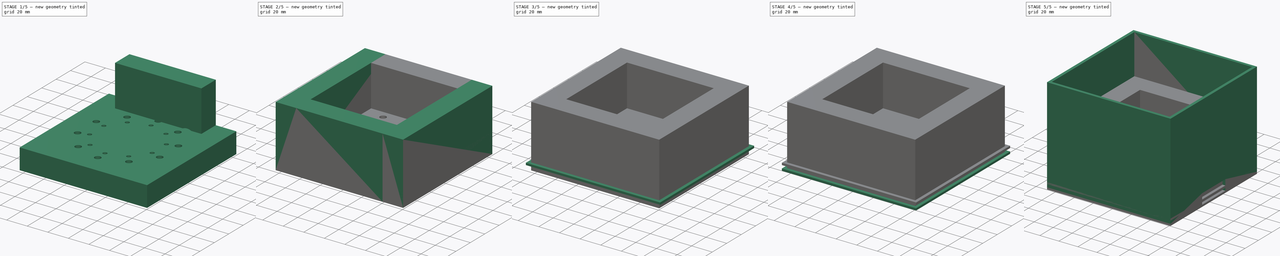
[diagram: build sequence overview — one tinted view per stage of 5, left to right]
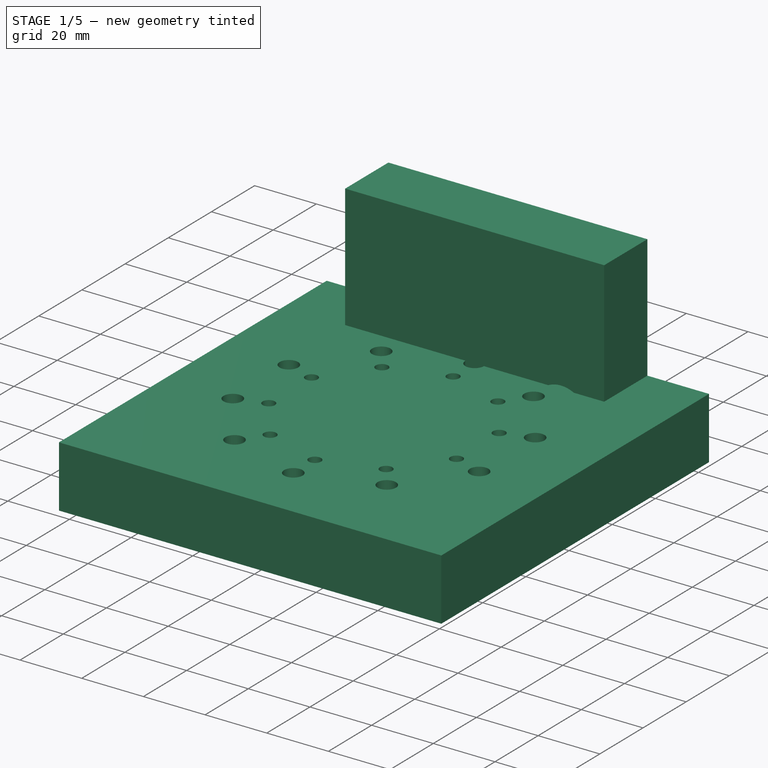
[diagram: stage 1 of 5 — iso view after this stage's code; geometry added in this stage tinted green]
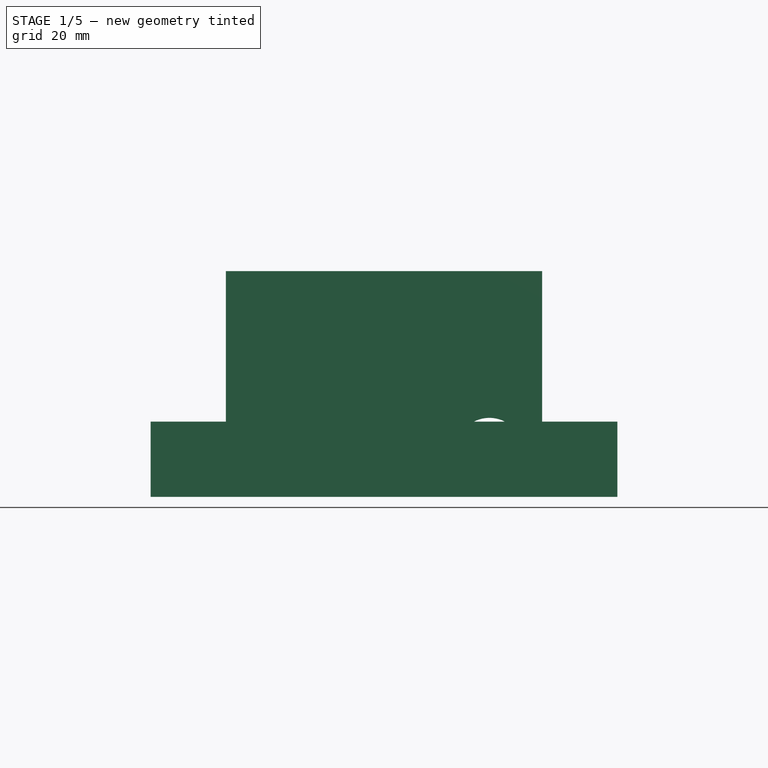
[diagram: stage 1 of 5 — front view after this stage's code; geometry added in this stage tinted green]
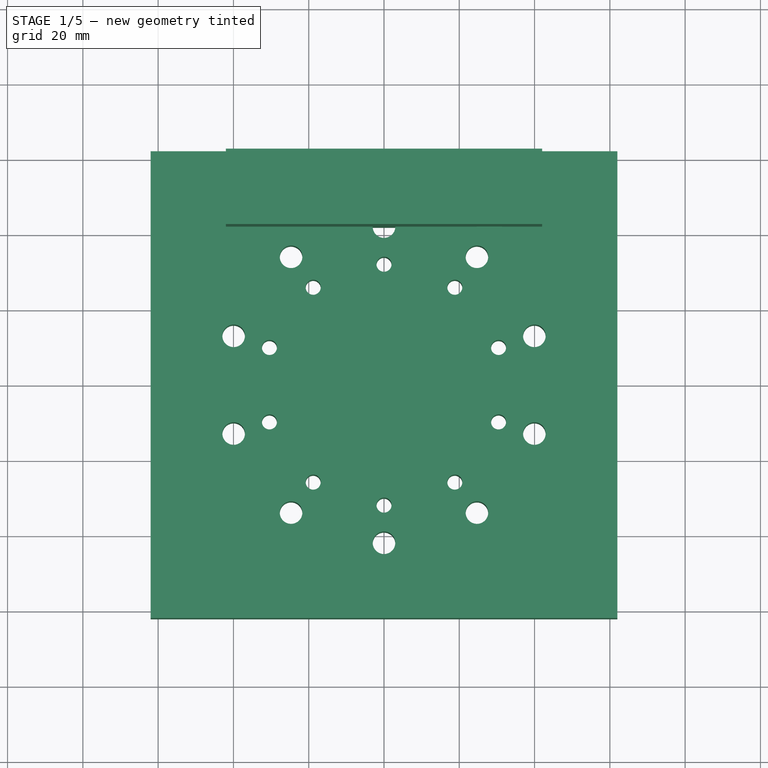
[diagram: stage 1 of 5 — top view after this stage's code; geometry added in this stage tinted green]
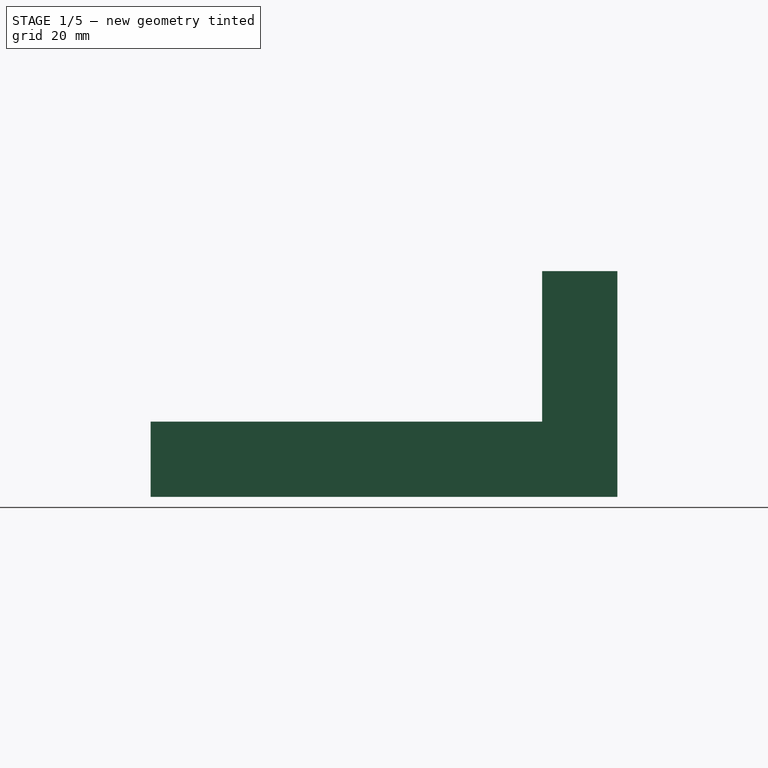
[diagram: stage 1 of 5 — right view after this stage's code; geometry added in this stage tinted green]
FCSTD DOCUMENT  (FreeCAD 2022.111R30764 (Git))
Label: CPAP_quiet_case
License: All rights reserved
LicenseURL: http://en.wikipedia.org/wiki/All_rights_reserved
objects: Sketcher::SketchObject×16, Part::SubShapeBinder×11, PartDesign::Pad×10, PartDesign::Body×8, PartDesign::Pocket×4, PartDesign::PolarPattern×1, PartDesign::SubtractiveLoft×1
note: 83 computed .brp shape members not serialized (recipe doc carries the construction recipe); baked Part::Feature solids carry a one-line shape summary decoded from their .brp

FEATURE [PartDesign::Body] Body006  label="Foam padding 4"
  AutoGroupSolids = false
  ExportMode = 0
  Group = -> [Sketch012,Import005,Import006,Pad007]
  Origin = -> Origin006
  Placement = pos=(0,0,22) rot=(0,0,1;0rad)
  Tip = -> Pad007
  TreeRank = 93
  _ExportChildren = -> [Import005,Import006,Pad007]
  _GroupVersion = 1
FEATURE [Part::SubShapeBinder] Import007  label="Import007(Pad005)"
  BindCopyOnChange = 0
  BindMode = 0
  ClaimChildren = false
  Context = -> Body007 [Import007.]
  FillStyle = 0
  Fuse = false
  MakeFace = false
  PartialLoad = false
  Relative = true
  Support = -> [Body003[Pad005.]]
  TreeRank = 111
  _Version = 8
FEATURE [Part::SubShapeBinder] Import008  label="Import008(Pad006)"
  BindCopyOnChange = 0
  BindMode = 0
  ClaimChildren = false
  Context = -> Body007 [Import008.]
  FillStyle = 0
  Fuse = false
  MakeFace = false
  PartialLoad = false
  Relative = true
  Support = -> [Body005[Pad006.]]
  TreeRank = 112
  _Version = 8
FEATURE [Sketcher::SketchObject] Sketch013
  ExternalGeometry = -> [Import007,Import008]
  FullyConstrained = true
  TreeRank = 110
  sketch-geometry (4):
    g0: LineSegment StartX=-42 StartY=62 StartZ=0 EndX=42 EndY=62 EndZ=0
    g1: LineSegment StartX=42 StartY=62 StartZ=0 EndX=42 EndY=42 EndZ=0
    g2: LineSegment StartX=42 StartY=42 StartZ=0 EndX=-42 EndY=42 EndZ=0
    g3: LineSegment StartX=-42 StartY=42 StartZ=0 EndX=-42 EndY=62 EndZ=0
  constraints (11):
    c: Coincident(g0,g1)
    c: Coincident(g1,g2)
    c: Coincident(g2,g3)
    c: Coincident(g3,g0)
    c: Horizontal(g0)
    c: Horizontal(g2)
    c: Vertical(g1)
    c: Vertical(g3)
    c: Coincident(g0,g-3)
    c: PointOnObject(g1,g-4)
    c: DistanceY(g1,g1) = 20
FEATURE [PartDesign::Pad] Pad008
  AddSubType = 0
  AlongSketchNormal = false
  CheckUpToFaceLimits = true
  ClaimChildren = false
  Direction = (0,0,1)
  Fit = 0
  FitJoin = 0
  InnerFit = 0
  InnerFitJoin = 0
  InnerTaperAngle = 0
  InnerTaperAngleRev = 0
  Length = 60
  Length2 = 100
  Linearize = true
  NewSolid = false
  Profile = -> Sketch013
  Suppress = false
  TreeRank = 113
  Type = 0
  _ProfileBasedVersion = 1
FEATURE [Part::SubShapeBinder] Import009  label="Import009(PolarPattern)"
  BindCopyOnChange = 0
  BindMode = 0
  ClaimChildren = false
  Context = -> Body008 [Import009.]
  FillStyle = 0
  Fuse = false
  MakeFace = false
  PartialLoad = false
  Relative = true
  Support = -> [Body001[PolarPattern.]]
  TreeRank = 127
  _Version = 8
FEATURE [Sketcher::SketchObject] Sketch014
  ExternalGeometry = -> [Import009]
  FullyConstrained = true
  TreeRank = 126
  sketch-geometry (24):
    g0: LineSegment StartX=-62 StartY=62 StartZ=0 EndX=62 EndY=62 EndZ=0
    g1: LineSegment StartX=62 StartY=62 StartZ=0 EndX=62 EndY=-62 EndZ=0
    g2: LineSegment StartX=62 StartY=-62 StartZ=0 EndX=-62 EndY=-62 EndZ=0
    g3: LineSegment StartX=-62 StartY=-62 StartZ=0 EndX=-62 EndY=62 EndZ=0
    g4: Circle CenterX=-24.687 CenterY=33.9787 CenterZ=0 NormalX=0 NormalY=0 NormalZ=1 AngleXU=0 Radius=3
    g5: Circle CenterX=-39.9444 CenterY=12.9787 CenterZ=0 NormalX=0 NormalY=0 NormalZ=1 AngleXU=0 Radius=3
    g6: Circle CenterX=-30.4338 CenterY=9.88854 CenterZ=0 NormalX=0 NormalY=0 NormalZ=1 AngleXU=0 Radius=2
    g7: Circle CenterX=-30.4338 CenterY=-9.88854 CenterZ=0 NormalX=0 NormalY=0 NormalZ=1 AngleXU=0 Radius=2
    g8: Circle CenterX=-39.9444 CenterY=-12.9787 CenterZ=0 NormalX=0 NormalY=0 NormalZ=1 AngleXU=0 Radius=3
    g9: Circle CenterX=-18.8091 CenterY=-25.8885 CenterZ=0 NormalX=0 NormalY=0 NormalZ=1 AngleXU=0 Radius=2
    g10: Circle CenterX=-24.687 CenterY=-33.9787 CenterZ=0 NormalX=0 NormalY=0 NormalZ=1 AngleXU=0 Radius=3
    g11: Circle CenterX=0 CenterY=-32 CenterZ=0 NormalX=0 NormalY=0 NormalZ=1 AngleXU=0 Radius=2
    g12: Circle CenterX=0 CenterY=-42 CenterZ=0 NormalX=0 NormalY=0 NormalZ=1 AngleXU=0 Radius=3
    g13: Circle CenterX=24.687 CenterY=-33.9787 CenterZ=0 NormalX=0 NormalY=0 NormalZ=1 AngleXU=0 Radius=3
    g14: Circle CenterX=18.8091 CenterY=-25.8885 CenterZ=0 NormalX=0 NormalY=0 NormalZ=1 AngleXU=0 Radius=2
    g15: Circle CenterX=30.4338 CenterY=-9.88854 CenterZ=0 NormalX=0 NormalY=0 NormalZ=1 AngleXU=0 Radius=2
    g16: Circle CenterX=39.9444 CenterY=-12.9787 CenterZ=0 NormalX=0 NormalY=0 NormalZ=1 AngleXU=0 Radius=3
    g17: Circle CenterX=39.9444 CenterY=12.9787 CenterZ=0 NormalX=0 NormalY=0 NormalZ=1 AngleXU=0 Radius=3
    g18: Circle CenterX=24.687 CenterY=33.9787 CenterZ=0 NormalX=0 NormalY=0 NormalZ=1 AngleXU=0 Radius=3
    g19: Circle CenterX=18.8091 CenterY=25.8885 CenterZ=0 NormalX=0 NormalY=0 NormalZ=1 AngleXU=0 Radius=2
    g20: Circle CenterX=0 CenterY=32 CenterZ=0 NormalX=0 NormalY=0 NormalZ=1 AngleXU=0 Radius=2
    g21: Circle CenterX=0 CenterY=42 CenterZ=0 NormalX=0 NormalY=0 NormalZ=1 AngleXU=0 Radius=3
    g22: Circle CenterX=-18.8091 CenterY=25.8885 CenterZ=0 NormalX=0 NormalY=0 NormalZ=1 AngleXU=0 Radius=2
    g23: Circle CenterX=30.4338 CenterY=9.88854 CenterZ=0 NormalX=0 NormalY=0 NormalZ=1 AngleXU=0 Radius=2
  constraints (50):
    c: Coincident(g0,g1)
    c: Coincident(g1,g2)
    c: Coincident(g2,g3)
    c: Coincident(g3,g0)
    c: Horizontal(g0)
    c: Horizontal(g2)
    c: Vertical(g1)
    c: Vertical(g3)
    c: Coincident(g0,g-4)
    c: Coincident(g1,g-3)
    c: Coincident(g4,g-19)
    c: Equal(g-19,g4)
    c: Coincident(g5,g-18)
    c: Coincident(g6,g-16)
    c: Coincident(g7,g-15)
    c: Coincident(g8,g-17)
    c: Coincident(g9,g-12)
    c: Coincident(g10,g-11)
    c: Coincident(g11,g-14)
    c: Coincident(g12,g-10)
    c: Coincident(g13,g-8)
    c: Coincident(g14,g-7)
    c: Coincident(g15,g-6)
    c: Coincident(g16,g-5)
    c: Coincident(g17,g-25)
    c: Coincident(g18,g-23)
    c: Coincident(g19,g-24)
    c: Coincident(g20,g-27)
    c: Coincident(g21,g-22)
    c: Coincident(g22,g-20)
    c: Equal(g22,g-20)
    c: Equal(g20,g19)
    c: Equal(g19,g15)
    c: Equal(g15,g14)
    c: Equal(g14,g7)
    c: Equal(g7,g6)
    c: Equal(g6,g9)
    c: Equal(g9,g11)
    c: Equal(g20,g22)
    c: Coincident(g23,g-26)
    c: Equal(g23,g20)
    c: Equal(g5,g8)
    c: Equal(g8,g10)
    c: Equal(g10,g12)
    c: Equal(g12,g13)
    c: Equal(g13,g16)
    c: Equal(g16,g17)
    c: Equal(g17,g18)
    c: Equal(g18,g21)
    c: Equal(g21,g4)
FEATURE [PartDesign::Pad] Pad009
  AddSubType = 0
  AlongSketchNormal = false
  CheckUpToFaceLimits = true
  ClaimChildren = false
  Direction = (0,0,1)
  Fit = 0
  FitJoin = 0
  InnerFit = 0
  InnerFitJoin = 0
  InnerTaperAngle = 0
  InnerTaperAngleRev = 0
  Length = 20
  Length2 = 100
  Linearize = true
  NewSolid = false
  Profile = -> Sketch014
  Suppress = false
  TreeRank = 128
  Type = 0
  _ProfileBasedVersion = 1
FEATURE [PartDesign::Body] Body008  label="Foam padding 6"
  AutoGroupSolids = false
  ExportMode = 0
  Group = -> [Sketch014,Import009,Pad009]
  Origin = -> Origin008
  Placement = pos=(0,0,82) rot=(0,0,1;0rad)
  Tip = -> Pad009
  TreeRank = 125
  _ExportChildren = -> [Import009,Pad009]
  _GroupVersion = 1
FEATURE [Part::SubShapeBinder] Import010  label="Import010(Pocket001)"
  BindCopyOnChange = 0
  BindMode = 0
  ClaimChildren = false
  Context = -> Body007 [Import010.]
  FillStyle = 0
  Fuse = false
  MakeFace = false
  PartialLoad = false
  Relative = true
  Support = -> [Body[Pocket001.]]
  TreeRank = 130
  _Version = 8
FEATURE [Sketcher::SketchObject] Sketch015
  ExternalGeometry = -> [Import010]
  FullyConstrained = true
  MapMode = 5
  Placement = pos=(0,62,0) rot=(0,0.707107,0.707107;3.14159rad)
  Support = -> [Pad008]
  TreeRank = 129
  sketch-geometry (1):
    g0: Circle CenterX=-28 CenterY=12 CenterZ=0 NormalX=0 NormalY=0 NormalZ=1 AngleXU=0 Radius=9
  constraints (2):
    c: Coincident(g0,g-3)
    c: Equal(g0,g-3)
FEATURE [PartDesign::Pocket] Pocket003
  AddSubType = 1
  BaseFeature = -> Pad008
  CheckUpToFaceLimits = true
  ClaimChildren = false
  Fit = 0
  FitJoin = 0
  InnerFit = 0
  InnerFitJoin = 0
  InnerTaperAngle = 0
  InnerTaperAngleRev = 0
  Length = 20
  Length2 = 100
  Linearize = true
  NewSolid = false
  Profile = -> Sketch015
  Suppress = false
  TreeRank = 131
  Type = 0
  _ProfileBasedVersion = 1
  _Version = 1
FEATURE [PartDesign::Body] Body007  label="Foam padding 5"
  AutoGroupSolids = false
  ExportMode = 0
  Group = -> [Sketch013,Import007,Import008,Pad008,Sketch015,Import010,Pocket003]
  Origin = -> Origin007
  Placement = pos=(0,0,22) rot=(0,0,1;0rad)
  Tip = -> Pocket003
  TreeRank = 109
  _ExportChildren = -> [Import007,Import008,Pad008,Import010,Pocket003]
  _GroupVersion = 1
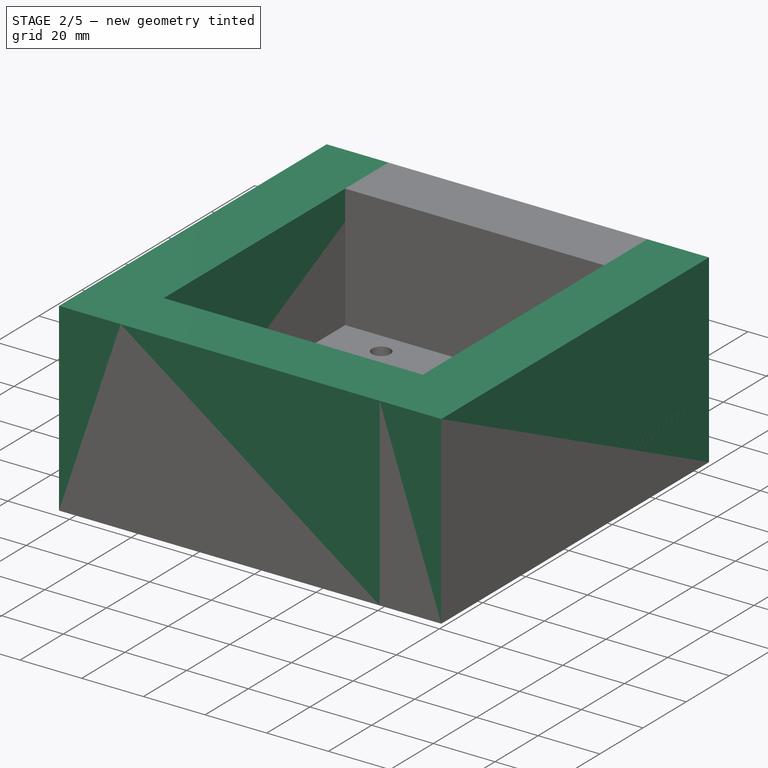
[diagram: stage 2 of 5 — iso view after this stage's code; geometry added in this stage tinted green]
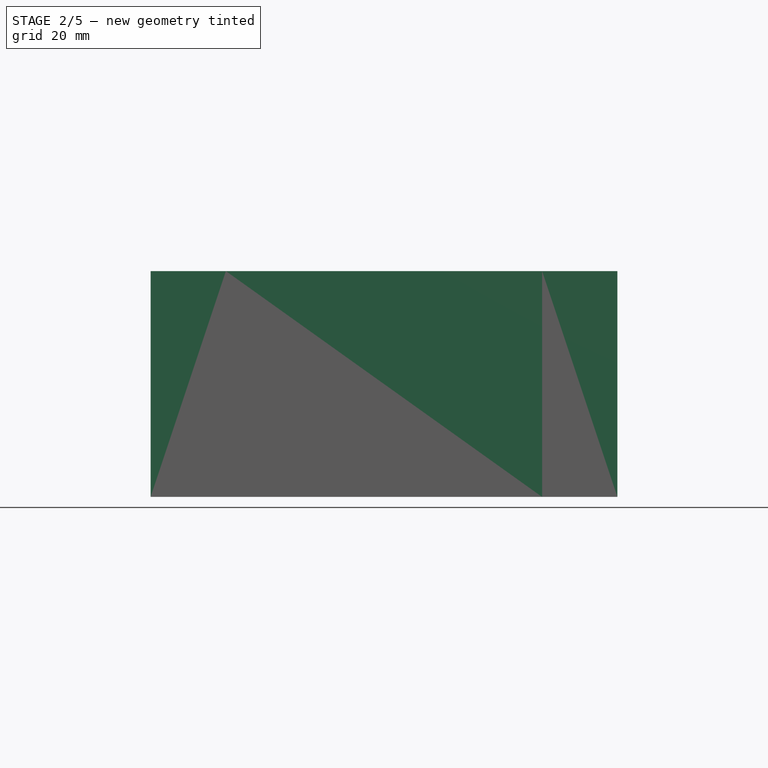
[diagram: stage 2 of 5 — front view after this stage's code; geometry added in this stage tinted green]
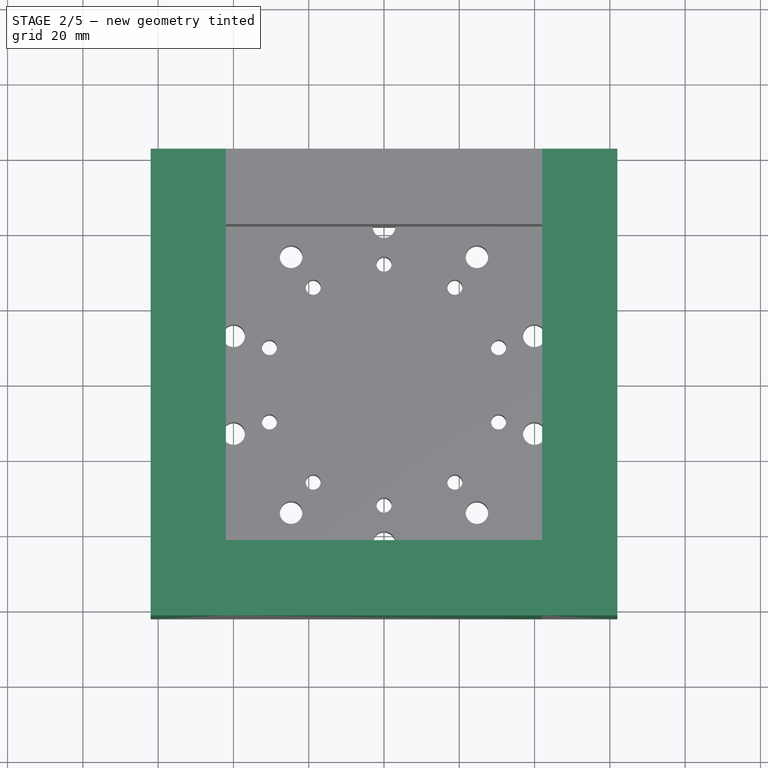
[diagram: stage 2 of 5 — top view after this stage's code; geometry added in this stage tinted green]
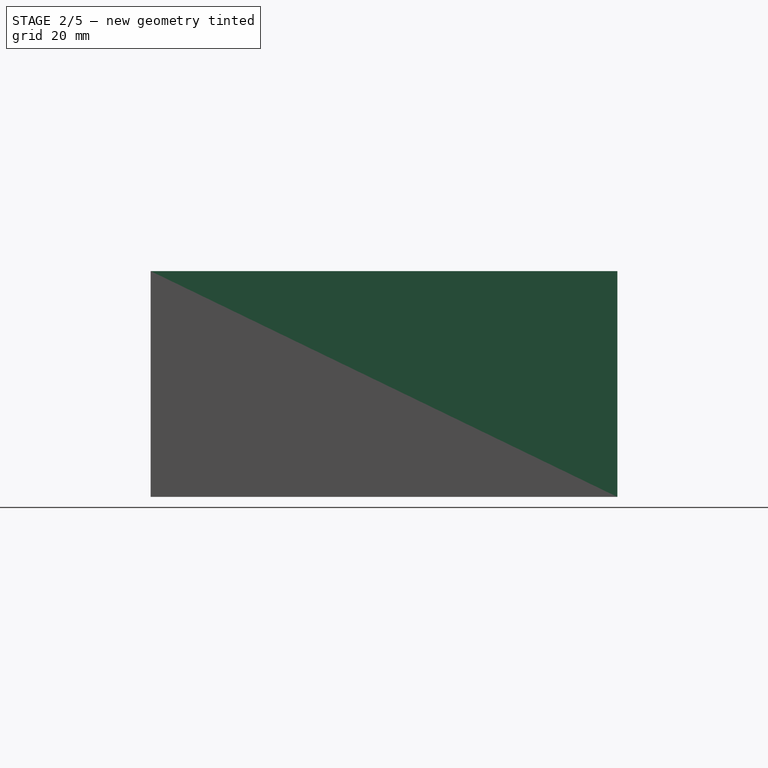
[diagram: stage 2 of 5 — right view after this stage's code; geometry added in this stage tinted green]
FEATURE [PartDesign::Body] Body002  label="Foam padding 1"
  AutoGroupSolids = false
  ExportMode = 0
  Group = -> [Sketch007,Import001,Pad004,Sketch008,Sketch009,Loft]
  Origin = -> Origin002
  Placement = pos=(0,0,2) rot=(0,0,1;0rad)
  Tip = -> Loft
  TreeRank = 52
  _ExportChildren = -> [Import001,Pad004,Loft]
  _GroupVersion = 1
FEATURE [Part::SubShapeBinder] Import002  label="Import002(Pocket001)"
  BindCopyOnChange = 0
  BindMode = 0
  ClaimChildren = false
  Context = -> Body003 [Import002.]
  FillStyle = 0
  Fuse = false
  MakeFace = false
  PartialLoad = false
  Relative = true
  Support = -> [Body[Pocket001.]]
  TreeRank = 72
  _Version = 8
FEATURE [Sketcher::SketchObject] Sketch010
  ExternalGeometry = -> [Import002]
  FullyConstrained = true
  TreeRank = 71
  sketch-geometry (4):
    g0: LineSegment StartX=-62 StartY=62 StartZ=0 EndX=-42 EndY=62 EndZ=0
    g1: LineSegment StartX=-42 StartY=62 StartZ=0 EndX=-42 EndY=-62 EndZ=0
    g2: LineSegment StartX=-42 StartY=-62 StartZ=0 EndX=-62 EndY=-62 EndZ=0
    g3: LineSegment StartX=-62 StartY=-62 StartZ=0 EndX=-62 EndY=62 EndZ=0
  constraints (11):
    c: Coincident(g0,g1)
    c: Coincident(g1,g2)
    c: Coincident(g2,g3)
    c: Coincident(g3,g0)
    c: Horizontal(g0)
    c: Horizontal(g2)
    c: Vertical(g1)
    c: Vertical(g3)
    c: Coincident(g0,g-3)
    c: PointOnObject(g1,g-4)
    c: DistanceX(g2,g2) = 20
FEATURE [PartDesign::Pad] Pad005
  AddSubType = 0
  AlongSketchNormal = false
  CheckUpToFaceLimits = true
  ClaimChildren = false
  Direction = (0,0,1)
  Fit = 0
  FitJoin = 0
  InnerFit = 0
  InnerFitJoin = 0
  InnerTaperAngle = 0
  InnerTaperAngleRev = 0
  Length = 60
  Length2 = 100
  Linearize = true
  NewSolid = false
  Profile = -> Sketch010
  Suppress = false
  TreeRank = 73
  Type = 0
  _ProfileBasedVersion = 1
FEATURE [PartDesign::Body] Body003  label="Foam padding 2"
  AutoGroupSolids = false
  ExportMode = 0
  Group = -> [Sketch010,Import002,Pad005]
  Origin = -> Origin003
  Placement = pos=(0,0,22) rot=(0,0,1;0rad)
  Tip = -> Pad005
  TreeRank = 70
  _ExportChildren = -> [Import002,Pad005]
  _GroupVersion = 1
FEATURE [Part::SubShapeBinder] Import003  label="Import003(Loft)"
  BindCopyOnChange = 0
  BindMode = 0
  ClaimChildren = false
  Context = -> Body005 [Import003.]
  FillStyle = 0
  Fuse = false
  MakeFace = false
  PartialLoad = false
  Relative = true
  Support = -> [Body002[Loft.]]
  TreeRank = 79
  _Version = 8
FEATURE [Part::SubShapeBinder] Import004  label="Import004(Pocket001)"
  BindCopyOnChange = 0
  BindMode = 0
  ClaimChildren = false
  Context = -> Body005 [Import004.]
  FillStyle = 0
  Fuse = false
  MakeFace = false
  PartialLoad = false
  Relative = true
  Support = -> [Body[Pocket001.]]
  TreeRank = 80
  _Version = 8
FEATURE [Sketcher::SketchObject] Sketch011
  ExternalGeometry = -> [Import004]
  FullyConstrained = true
  MapMode = 5
  Support = -> [Import003]
  TreeRank = 78
  sketch-geometry (4):
    g0: LineSegment StartX=62 StartY=62 StartZ=0 EndX=42 EndY=62 EndZ=0
    g1: LineSegment StartX=42 StartY=62 StartZ=0 EndX=42 EndY=-62 EndZ=0
    g2: LineSegment StartX=42 StartY=-62 StartZ=0 EndX=62 EndY=-62 EndZ=0
    g3: LineSegment StartX=62 StartY=-62 StartZ=0 EndX=62 EndY=62 EndZ=0
  constraints (10):
    c: Coincident(g0,g1)
    c: Coincident(g1,g2)
    c: Coincident(g2,g3)
    c: Coincident(g3,g0)
    c: Horizontal(g0)
    c: Horizontal(g2)
    c: Vertical(g1)
    c: Coincident(g0,g-3)
    c: Coincident(g2,g-3)
    c: DistanceX(g2,g2) = 20
FEATURE [PartDesign::Pad] Pad006
  AddSubType = 0
  AlongSketchNormal = false
  CheckUpToFaceLimits = true
  ClaimChildren = false
  Direction = (0,0,1)
  Fit = 0
  FitJoin = 0
  InnerFit = 0
  InnerFitJoin = 0
  InnerTaperAngle = 0
  InnerTaperAngleRev = 0
  Length = 60
  Length2 = 100
  Linearize = true
  NewSolid = false
  Profile = -> Sketch011
  Suppress = false
  TreeRank = 81
  Type = 0
  _ProfileBasedVersion = 1
FEATURE [PartDesign::Body] Body005  label="Foam padding 3"
  AutoGroupSolids = false
  ExportMode = 0
  Group = -> [Sketch011,Import003,Import004,Pad006]
  Origin = -> Origin005
  Placement = pos=(0,0,22) rot=(0,0,1;0rad)
  Tip = -> Pad006
  TreeRank = 77
  _ExportChildren = -> [Import003,Import004,Pad006]
  _GroupVersion = 1
FEATURE [Part::SubShapeBinder] Import005  label="Import005(Pad005)"
  BindCopyOnChange = 0
  BindMode = 0
  ClaimChildren = false
  Context = -> Body006 [Import005.]
  FillStyle = 0
  Fuse = false
  MakeFace = false
  PartialLoad = false
  Relative = true
  Support = -> [Body003[Pad005.]]
  TreeRank = 95
  _Version = 8
FEATURE [Part::SubShapeBinder] Import006  label="Import006(Pad006)"
  BindCopyOnChange = 0
  BindMode = 0
  ClaimChildren = false
  Context = -> Body006 [Import006.]
  FillStyle = 0
  Fuse = false
  MakeFace = false
  PartialLoad = false
  Relative = true
  Support = -> [Body005[Pad006.]]
  TreeRank = 96
  _Version = 8
FEATURE [Sketcher::SketchObject] Sketch012
  ExternalGeometry = -> [Import005,Import006]
  FullyConstrained = true
  TreeRank = 94
  sketch-geometry (4):
    g0: LineSegment StartX=-42 StartY=-62 StartZ=0 EndX=42 EndY=-62 EndZ=0
    g1: LineSegment StartX=42 StartY=-62 StartZ=0 EndX=42 EndY=-42 EndZ=0
    g2: LineSegment StartX=42 StartY=-42 StartZ=0 EndX=-42 EndY=-42 EndZ=0
    g3: LineSegment StartX=-42 StartY=-42 StartZ=0 EndX=-42 EndY=-62 EndZ=0
  constraints (11):
    c: Coincident(g0,g1)
    c: Coincident(g1,g2)
    c: Coincident(g2,g3)
    c: Coincident(g3,g0)
    c: Horizontal(g0)
    c: Horizontal(g2)
    c: Vertical(g1)
    c: Vertical(g3)
    c: Coincident(g0,g-3)
    c: PointOnObject(g1,g-4)
    c: DistanceY(g1,g1) = 20
FEATURE [PartDesign::Pad] Pad007
  AddSubType = 0
  AlongSketchNormal = false
  CheckUpToFaceLimits = true
  ClaimChildren = false
  Direction = (0,0,1)
  Fit = 0
  FitJoin = 0
  InnerFit = 0
  InnerFitJoin = 0
  InnerTaperAngle = 0
  InnerTaperAngleRev = 0
  Length = 60
  Length2 = 100
  Linearize = true
  NewSolid = false
  Profile = -> Sketch012
  Suppress = false
  TreeRank = 97
  Type = 0
  _ProfileBasedVersion = 1
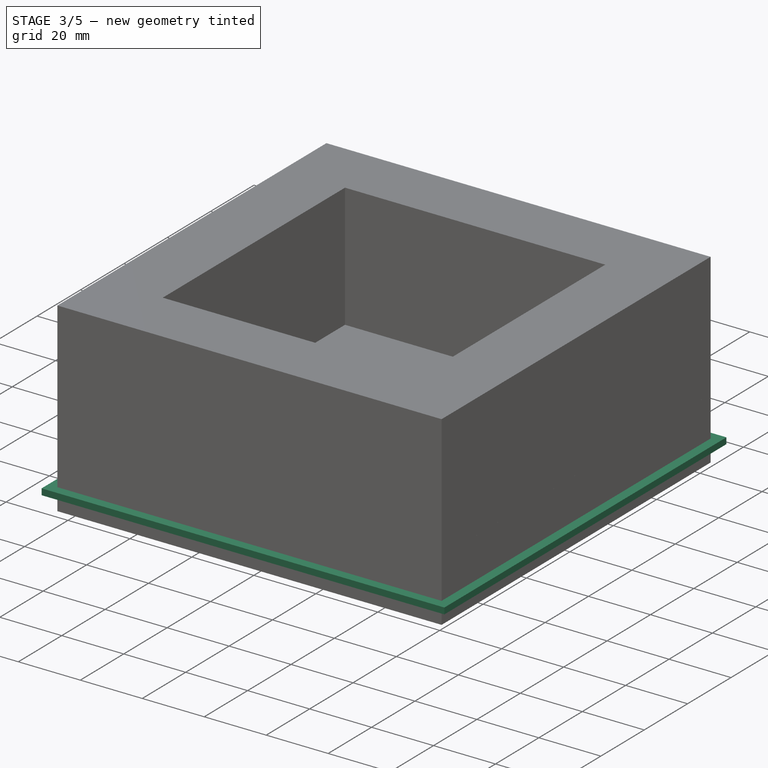
[diagram: stage 3 of 5 — iso view after this stage's code; geometry added in this stage tinted green]
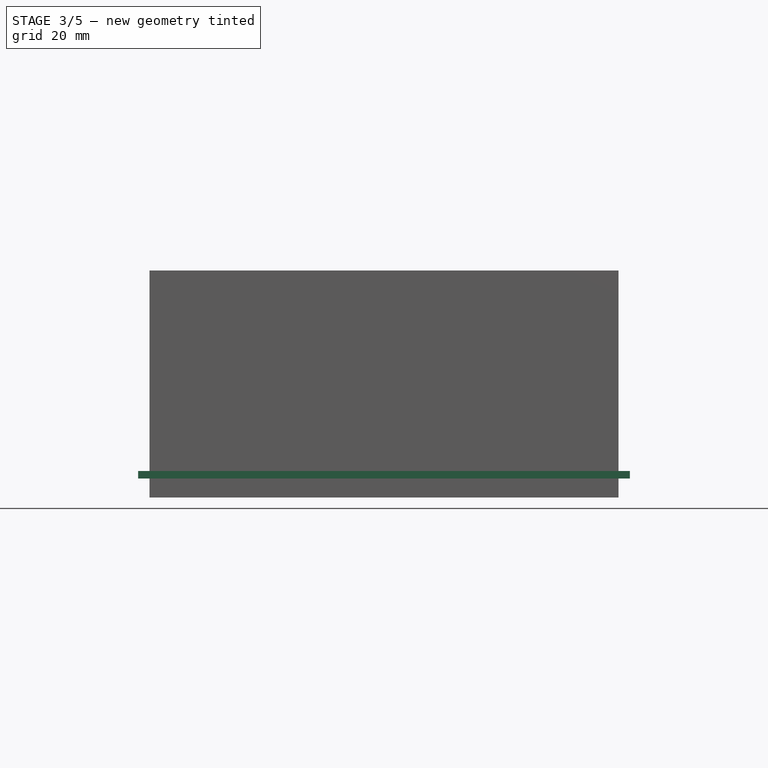
[diagram: stage 3 of 5 — front view after this stage's code; geometry added in this stage tinted green]
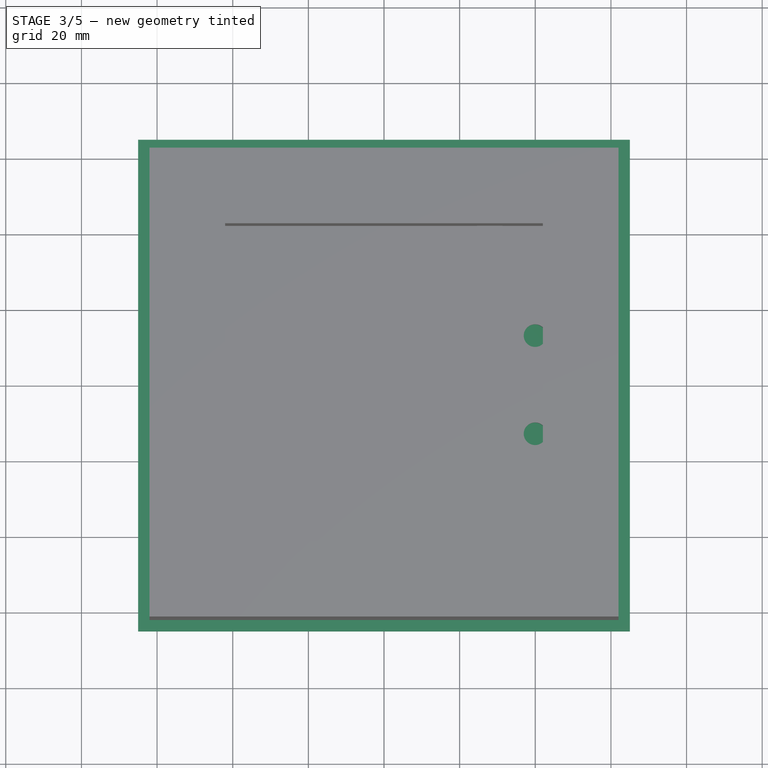
[diagram: stage 3 of 5 — top view after this stage's code; geometry added in this stage tinted green]
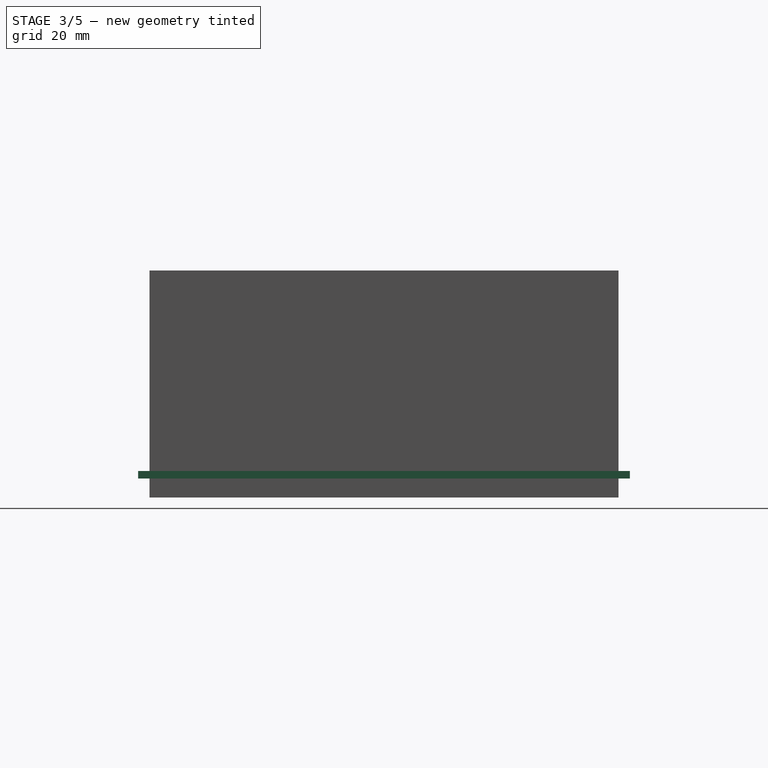
[diagram: stage 3 of 5 — right view after this stage's code; geometry added in this stage tinted green]
FEATURE [PartDesign::Body] Body  label="Base"
  AutoGroupSolids = false
  ExportMode = 0
  Group = -> [Sketch,Pad,Sketch001,Pad001,Sketch002,Pocket,Sketch003,Pocket001]
  Origin = -> Origin
  Tip = -> Pocket001
  TreeRank = 12
  _ExportChildren = -> [Pad,Pad001,Pocket,Pocket001]
  _GroupVersion = 1
FEATURE [Part::SubShapeBinder] Import  label="Import(Pocket001)"
  BindCopyOnChange = 0
  BindMode = 0
  ClaimChildren = false
  Context = -> Body001 [Import.]
  FillStyle = 0
  Fuse = false
  MakeFace = false
  PartialLoad = false
  Relative = true
  Support = -> [Body[Pocket001.]]
  TreeRank = 34
  _Version = 8
FEATURE [Sketcher::SketchObject] Sketch004
  ExternalGeometry = -> [Import]
  FullyConstrained = true
  TreeRank = 33
  sketch-geometry (4):
    g0: LineSegment StartX=-62 StartY=62 StartZ=0 EndX=62 EndY=62 EndZ=0
    g1: LineSegment StartX=62 StartY=62 StartZ=0 EndX=62 EndY=-62 EndZ=0
    g2: LineSegment StartX=62 StartY=-62 StartZ=0 EndX=-62 EndY=-62 EndZ=0
    g3: LineSegment StartX=-62 StartY=-62 StartZ=0 EndX=-62 EndY=62 EndZ=0
  constraints (10):
    c: Coincident(g0,g1)
    c: Coincident(g1,g2)
    c: Coincident(g2,g3)
    c: Coincident(g3,g0)
    c: Horizontal(g0)
    c: Horizontal(g2)
    c: Vertical(g1)
    c: Vertical(g3)
    c: Coincident(g0,g-3)
    c: Coincident(g1,g-4)
FEATURE [PartDesign::Pad] Pad002
  AddSubType = 0
  AlongSketchNormal = false
  CheckUpToFaceLimits = true
  ClaimChildren = false
  Direction = (0,0,1)
  Fit = 0
  FitJoin = 0
  InnerFit = 0
  InnerFitJoin = 0
  InnerTaperAngle = 0
  InnerTaperAngleRev = 0
  Length = 5
  Length2 = 100
  Linearize = true
  NewSolid = false
  Profile = -> Sketch004
  Suppress = false
  TreeRank = 35
  Type = 0
  _ProfileBasedVersion = 1
FEATURE [Sketcher::SketchObject] Sketch005
  ExternalGeometry = -> [Import]
  FullyConstrained = true
  MapMode = 5
  Placement = pos=(0,0,5) rot=(0,0,1;0rad)
  Support = -> [Pad002]
  TreeRank = 36
  sketch-geometry (4):
    g0: LineSegment StartX=-65 StartY=65 StartZ=0 EndX=65 EndY=65 EndZ=0
    g1: LineSegment StartX=65 StartY=65 StartZ=0 EndX=65 EndY=-65 EndZ=0
    g2: LineSegment StartX=65 StartY=-65 StartZ=0 EndX=-65 EndY=-65 EndZ=0
    g3: LineSegment StartX=-65 StartY=-65 StartZ=0 EndX=-65 EndY=65 EndZ=0
  constraints (10):
    c: Coincident(g0,g1)
    c: Coincident(g1,g2)
    c: Coincident(g2,g3)
    c: Coincident(g3,g0)
    c: Horizontal(g0)
    c: Horizontal(g2)
    c: Vertical(g1)
    c: Vertical(g3)
    c: Coincident(g0,g-3)
    c: Coincident(g1,g-4)
FEATURE [PartDesign::Pad] Pad003
  AddSubType = 0
  AlongSketchNormal = false
  BaseFeature = -> Pad002
  CheckUpToFaceLimits = true
  ClaimChildren = false
  Direction = (0,0,1)
  Fit = 0
  FitJoin = 0
  InnerFit = 0
  InnerFitJoin = 0
  InnerTaperAngle = 0
  InnerTaperAngleRev = 0
  Length = 2
  Length2 = 100
  Linearize = true
  NewSolid = false
  Profile = -> Sketch005
  Suppress = false
  TreeRank = 37
  Type = 0
  _ProfileBasedVersion = 1
FEATURE [PartDesign::Body] Body001  label="Cover"
  AutoGroupSolids = false
  ExportMode = 0
  Group = -> [Sketch004,Import,Pad002,Sketch005,Pad003,Sketch006,Pocket002,PolarPattern]
  Origin = -> Origin001
  Placement = pos=(0,0,97) rot=(0,0,1;0rad)
  Tip = -> PolarPattern
  TreeRank = 32
  _ExportChildren = -> [Import,Pad002,Pad003,Pocket002,PolarPattern]
  _GroupVersion = 1
FEATURE [Part::SubShapeBinder] Import001  label="Import001(Pocket001)"
  BindCopyOnChange = 0
  BindMode = 0
  ClaimChildren = false
  Context = -> Body002 [Import001.]
  FillStyle = 0
  Fuse = false
  MakeFace = false
  PartialLoad = false
  Relative = true
  Support = -> [Body[Pocket001.]]
  TreeRank = 54
  _Version = 8
FEATURE [Sketcher::SketchObject] Sketch007
  ExternalGeometry = -> [Import001]
  FullyConstrained = true
  TreeRank = 53
  sketch-geometry (4):
    g0: LineSegment StartX=-62 StartY=62 StartZ=0 EndX=62 EndY=62 EndZ=0
    g1: LineSegment StartX=62 StartY=62 StartZ=0 EndX=62 EndY=-62 EndZ=0
    g2: LineSegment StartX=62 StartY=-62 StartZ=0 EndX=-62 EndY=-62 EndZ=0
    g3: LineSegment StartX=-62 StartY=-62 StartZ=0 EndX=-62 EndY=62 EndZ=0
  constraints (10):
    c: Coincident(g0,g1)
    c: Coincident(g1,g2)
    c: Coincident(g2,g3)
    c: Coincident(g3,g0)
    c: Horizontal(g0)
    c: Horizontal(g2)
    c: Vertical(g1)
    c: Vertical(g3)
    c: Coincident(g0,g-3)
    c: Coincident(g1,g-4)
FEATURE [PartDesign::Pad] Pad004
  AddSubType = 0
  AlongSketchNormal = false
  CheckUpToFaceLimits = true
  ClaimChildren = false
  Direction = (0,0,1)
  Fit = 0
  FitJoin = 0
  InnerFit = 0
  InnerFitJoin = 0
  InnerTaperAngle = 0
  InnerTaperAngleRev = 0
  Length = 20
  Length2 = 100
  Linearize = true
  NewSolid = false
  Profile = -> Sketch007
  Suppress = false
  TreeRank = 55
  Type = 0
  _ProfileBasedVersion = 1
FEATURE [Sketcher::SketchObject] Sketch008
  ExternalGeometry = -> [Import001]
  FullyConstrained = true
  MapMode = 5
  Placement = pos=(62,0,0) rot=(0.57735,0.57735,0.57735;2.0944rad)
  Support = -> [Pad004]
  TreeRank = 56
  sketch-geometry (4):
    g0: LineSegment StartX=-17.5 StartY=11 StartZ=0 EndX=17.5 EndY=11 EndZ=0
    g1: LineSegment StartX=17.5 StartY=11 StartZ=0 EndX=17.5 EndY=0 EndZ=0
    g2: LineSegment StartX=17.5 StartY=0 StartZ=0 EndX=-17.5 EndY=0 EndZ=0
    g3: LineSegment StartX=-17.5 StartY=0 StartZ=0 EndX=-17.5 EndY=11 EndZ=0
  constraints (10):
    c: Coincident(g0,g1)
    c: Coincident(g1,g2)
    c: Coincident(g2,g3)
    c: Coincident(g3,g0)
    c: Horizontal(g0)
    c: Horizontal(g2)
    c: Vertical(g1)
    c: Vertical(g3)
    c: Coincident(g0,g-4)
    c: Coincident(g1,g-5)
FEATURE [Sketcher::SketchObject] Sketch009
  ExternalGeometry = -> [Import001]
  FullyConstrained = true
  MapMode = 5
  Placement = pos=(0,0,20) rot=(0,0,1;0rad)
  Support = -> [Pad004]
  TreeRank = 57
  sketch-geometry (8):
    g0: LineSegment [constr] StartX=-35 StartY=35 StartZ=0 EndX=35 EndY=35 EndZ=0
    g1: LineSegment [constr] StartX=35 StartY=35 StartZ=0 EndX=35 EndY=-35 EndZ=0
    g2: LineSegment [constr] StartX=35 StartY=-35 StartZ=0 EndX=-35 EndY=-35 EndZ=0
    g3: LineSegment [constr] StartX=-35 StartY=-35 StartZ=0 EndX=-35 EndY=35 EndZ=0
    g4: LineSegment StartX=35 StartY=17.5 StartZ=0 EndX=42 EndY=17.5 EndZ=0
    g5: LineSegment StartX=42 StartY=17.5 StartZ=0 EndX=42 EndY=-17.5 EndZ=0
    g6: LineSegment StartX=42 StartY=-17.5 StartZ=0 EndX=35 EndY=-17.5 EndZ=0
    g7: LineSegment StartX=35 StartY=-17.5 StartZ=0 EndX=35 EndY=17.5 EndZ=0
  constraints (22):
    c: Coincident(g0,g1)
    c: Coincident(g1,g2)
    c: Coincident(g2,g3)
    c: Coincident(g3,g0)
    c: Horizontal(g0)
    c: Horizontal(g2)
    c: Vertical(g1)
    c: Vertical(g3)
    c: Symmetric(g1,g0,g-1)
    c: DistanceX(g0,g0) = 70
    c: Equal(g3,g0)
    c: Coincident(g4,g5)
    c: Coincident(g5,g6)
    c: Coincident(g6,g7)
    c: Coincident(g7,g4)
    c: Horizontal(g4)
    c: Horizontal(g6)
    c: Vertical(g5)
    c: PointOnObject(g4,g1)
    c: Equal(g5,g-5)
    c: Symmetric(g6,g4,g-1)
    c: DistanceX(g4,g4) = 7
FEATURE [PartDesign::SubtractiveLoft] Loft
  AddSubType = 1
  BaseFeature = -> Pad004
  ClaimChildren = false
  Closed = false
  Fit = 0
  FitJoin = 0
  InnerFit = 0
  InnerFitJoin = 0
  Linearize = true
  NewSolid = false
  Profile = -> Sketch008
  Ruled = false
  Sections = -> [Sketch009]
  SplitProfile = false
  Suppress = false
  TreeRank = 58
  _ProfileBasedVersion = 1
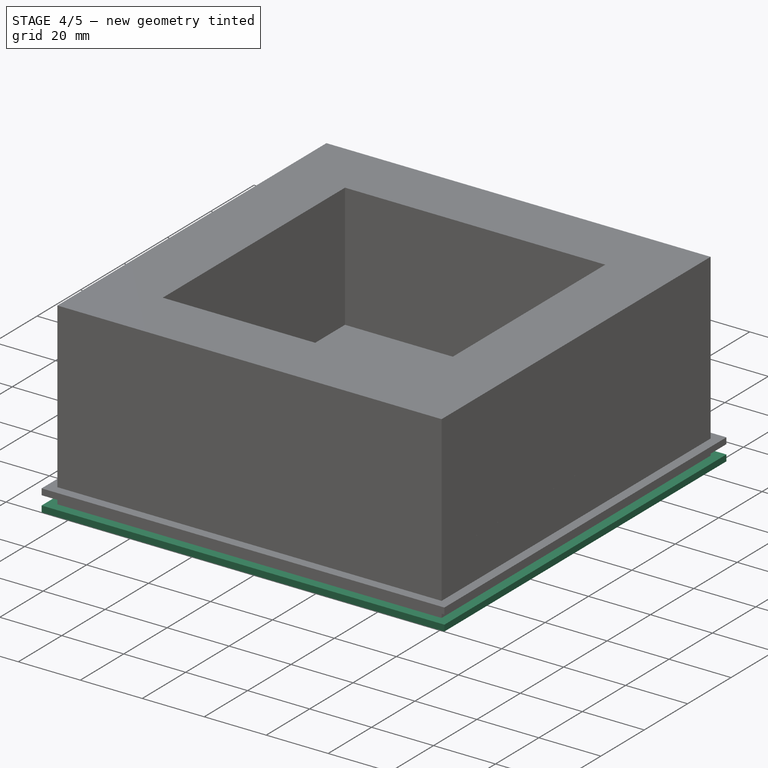
[diagram: stage 4 of 5 — iso view after this stage's code; geometry added in this stage tinted green]
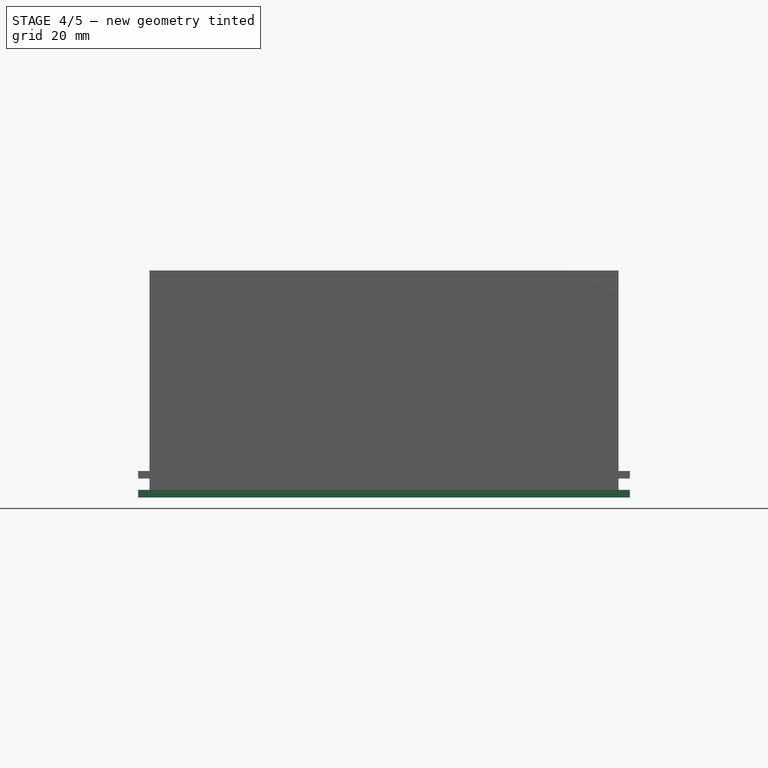
[diagram: stage 4 of 5 — front view after this stage's code; geometry added in this stage tinted green]
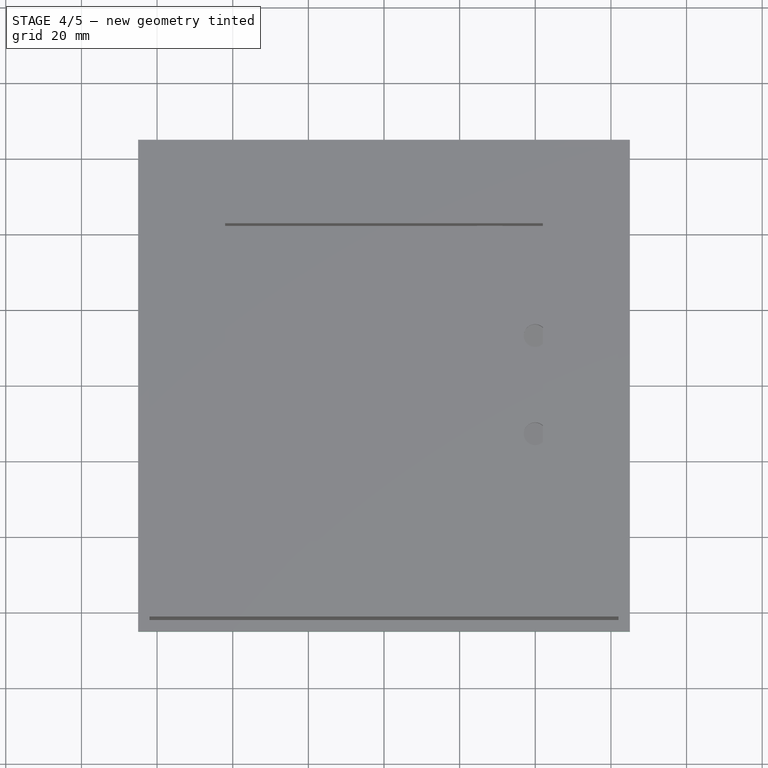
[diagram: stage 4 of 5 — top view after this stage's code; geometry added in this stage tinted green]
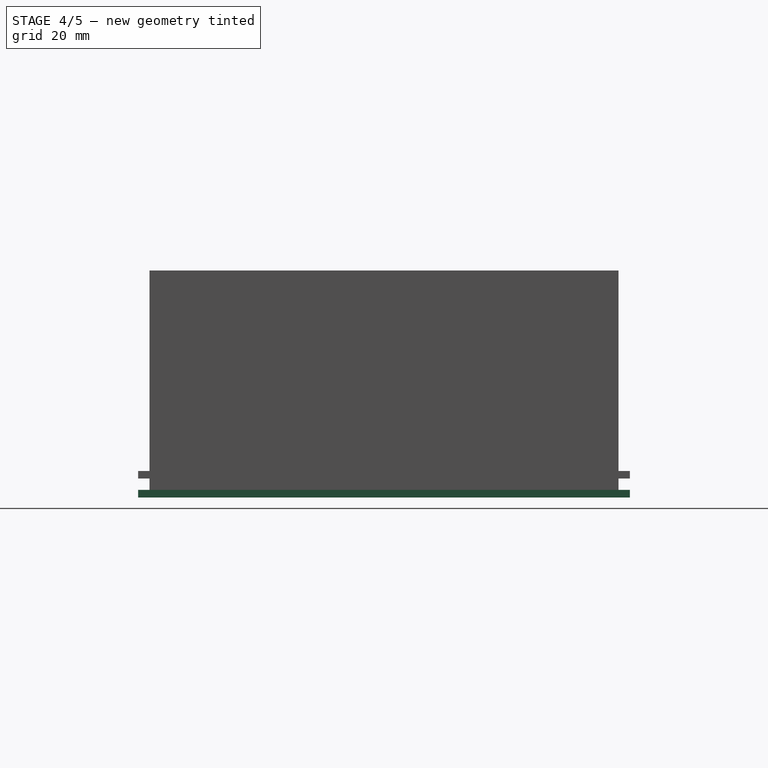
[diagram: stage 4 of 5 — right view after this stage's code; geometry added in this stage tinted green]
FEATURE [Sketcher::SketchObject] Sketch
  FullyConstrained = true
  TreeRank = 13
  sketch-geometry (4):
    g0: LineSegment StartX=-65 StartY=-65 StartZ=0 EndX=65 EndY=-65 EndZ=0
    g1: LineSegment StartX=65 StartY=-65 StartZ=0 EndX=65 EndY=65 EndZ=0
    g2: LineSegment StartX=65 StartY=65 StartZ=0 EndX=-65 EndY=65 EndZ=0
    g3: LineSegment StartX=-65 StartY=65 StartZ=0 EndX=-65 EndY=-65 EndZ=0
  constraints (11):
    c: Coincident(g0,g1)
    c: Coincident(g1,g2)
    c: Coincident(g2,g3)
    c: Coincident(g3,g0)
    c: Horizontal(g0)
    c: Horizontal(g2)
    c: Vertical(g1)
    c: Vertical(g3)
    c: Symmetric(g1,g0,g-1)
    c: DistanceY(g3,g3) = 130
    c: Equal(g3,g2)
FEATURE [PartDesign::Pad] Pad
  AddSubType = 0
  AlongSketchNormal = false
  CheckUpToFaceLimits = true
  ClaimChildren = false
  Direction = (0,0,1)
  Fit = 0
  FitJoin = 0
  InnerFit = 0
  InnerFitJoin = 0
  InnerTaperAngle = 0
  InnerTaperAngleRev = 0
  Length = 2
  Length2 = 100
  Linearize = true
  NewSolid = false
  Profile = -> Sketch
  Suppress = false
  TreeRank = 14
  Type = 0
  _ProfileBasedVersion = 1
FEATURE [Sketcher::SketchObject] Sketch006
  ExternalGeometry = -> [Pad003]
  FullyConstrained = true
  MapMode = 5
  Placement = pos=(0,0,7) rot=(0,0,1;0rad)
  Support = -> [Pad003]
  TreeRank = 38
  sketch-geometry (4):
    g0: Circle CenterX=0 CenterY=-42 CenterZ=0 NormalX=0 NormalY=0 NormalZ=1 AngleXU=0 Radius=3
    g1: Circle CenterX=0 CenterY=42 CenterZ=0 NormalX=0 NormalY=0 NormalZ=1 AngleXU=0 Radius=3
    g2: Circle CenterX=0 CenterY=32 CenterZ=0 NormalX=0 NormalY=0 NormalZ=1 AngleXU=0 Radius=2
    g3: Circle CenterX=0 CenterY=-32 CenterZ=0 NormalX=0 NormalY=0 NormalZ=1 AngleXU=0 Radius=2
  constraints (10):
    c: PointOnObject(g0,g-2)
    c: Equal(g1,g0)
    c: Radius(g1) = 3
    c: Symmetric(g1,g0,g-1)
    c: DistanceY(g1,g-4) = 20
    c: PointOnObject(g2,g-2)
    c: Radius(g2) = 2
    c: DistanceY(g2,g1) = 10
    c: Symmetric(g3,g2,g-1)
    c: Equal(g3,g2)
FEATURE [PartDesign::Pocket] Pocket002
  AddSubType = 1
  BaseFeature = -> Pad003
  CheckUpToFaceLimits = true
  ClaimChildren = false
  Fit = 0
  FitJoin = 0
  InnerFit = 0
  InnerFitJoin = 0
  InnerTaperAngle = 0
  InnerTaperAngleRev = 0
  Length = 5
  Length2 = 100
  Linearize = true
  NewSolid = false
  Profile = -> Sketch006
  Suppress = false
  TreeRank = 39
  Type = 1
  _ProfileBasedVersion = 1
  _Version = 1
FEATURE [PartDesign::PolarPattern] PolarPattern
  AddSubType = 0
  Angle = 180
  Axis = -> Z_Axis001
  BaseFeature = -> Pocket002
  CopyShape = false
  NewSolid = false
  Occurrences = 6
  OriginalSubs = -> [Pocket002]
  Originals = -> [Pocket002]
  ParallelTransform = true
  SubTransform = true
  Suppress = false
  TreeRank = 40
  _Version = 3
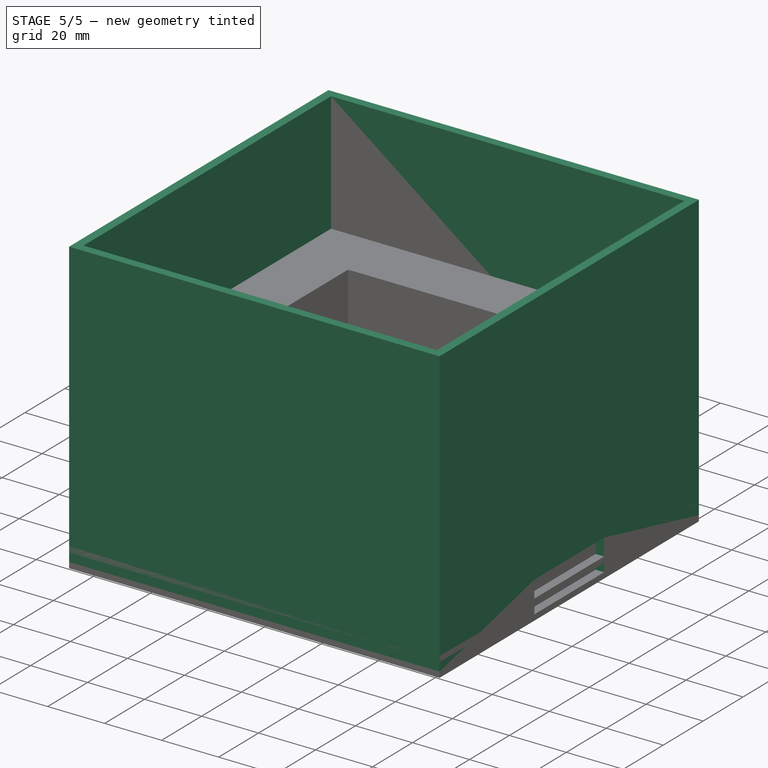
[diagram: stage 5 of 5 — iso view after this stage's code; geometry added in this stage tinted green]
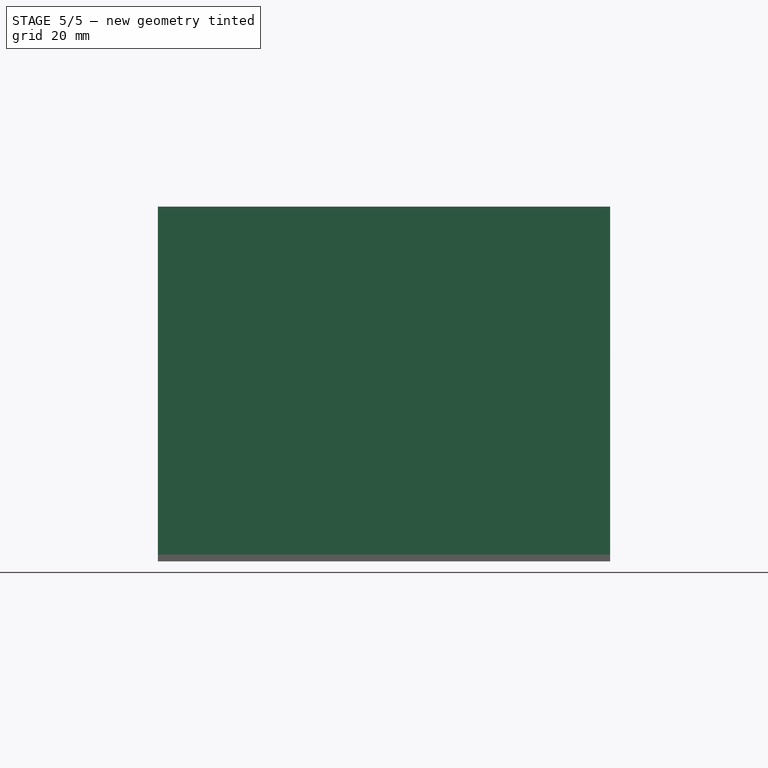
[diagram: stage 5 of 5 — front view after this stage's code; geometry added in this stage tinted green]
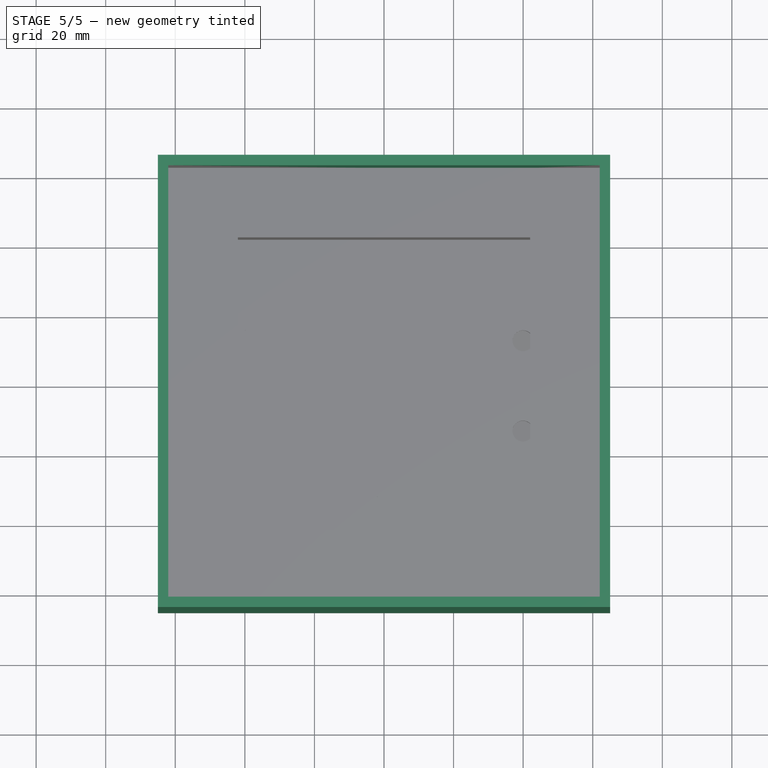
[diagram: stage 5 of 5 — top view after this stage's code; geometry added in this stage tinted green]
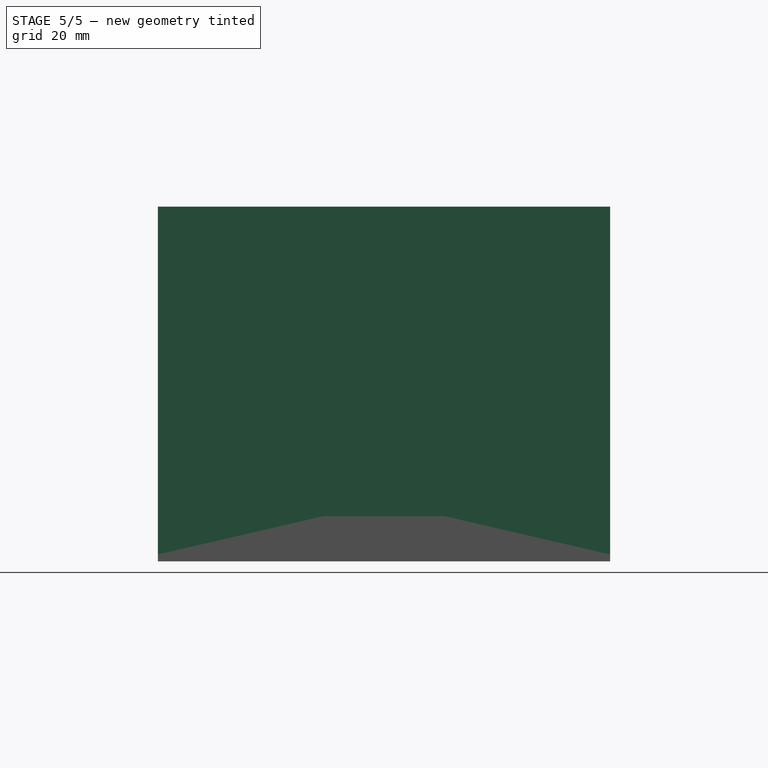
[diagram: stage 5 of 5 — right view after this stage's code; geometry added in this stage tinted green]
FEATURE [Sketcher::SketchObject] Sketch001
  ExternalGeometry = -> [Pad]
  FullyConstrained = true
  MapMode = 5
  Placement = pos=(0,0,2) rot=(0,0,1;0rad)
  Support = -> [Pad]
  TreeRank = 15
  sketch-geometry (8):
    g0: LineSegment StartX=-65 StartY=65 StartZ=0 EndX=65 EndY=65 EndZ=0
    g1: LineSegment StartX=65 StartY=65 StartZ=0 EndX=65 EndY=-65 EndZ=0
    g2: LineSegment StartX=65 StartY=-65 StartZ=0 EndX=-65 EndY=-65 EndZ=0
    g3: LineSegment StartX=-65 StartY=-65 StartZ=0 EndX=-65 EndY=65 EndZ=0
    g4: LineSegment StartX=62 StartY=-62 StartZ=0 EndX=-62 EndY=-62 EndZ=0
    g5: LineSegment StartX=-62 StartY=-62 StartZ=0 EndX=-62 EndY=62 EndZ=0
    g6: LineSegment StartX=-62 StartY=62 StartZ=0 EndX=62 EndY=62 EndZ=0
    g7: LineSegment StartX=62 StartY=62 StartZ=0 EndX=62 EndY=-62 EndZ=0
  constraints (21):
    c: Coincident(g1,g2)
    c: Coincident(g2,g3)
    c: Coincident(g3,g0)
    c: Horizontal(g0)
    c: Horizontal(g2)
    c: Vertical(g1)
    c: Vertical(g3)
    c: Horizontal(g4)
    c: Horizontal(g6)
    c: Vertical(g5)
    c: Vertical(g7)
    c: Symmetric(g5,g4,g-1)
    c: DistanceX(g0,g5) = 3
    c: DistanceY(g5,g0) = 3
    c: Coincident(g6,g5)
    c: Coincident(g6,g7)
    c: Coincident(g5,g4)
    c: Coincident(g4,g7)
    c: Coincident(g1,g-4)
    c: Coincident(g0,g-3)
    c: Coincident(g0,g1)
FEATURE [PartDesign::Pad] Pad001
  AddSubType = 0
  AlongSketchNormal = false
  BaseFeature = -> Pad
  CheckUpToFaceLimits = true
  ClaimChildren = false
  Direction = (0,0,1)
  Fit = 0
  FitJoin = 0
  InnerFit = 0
  InnerFitJoin = 0
  InnerTaperAngle = 0
  InnerTaperAngleRev = 0
  Length = 100
  Length2 = 100
  Linearize = true
  NewSolid = false
  Profile = -> Sketch001
  Suppress = false
  TreeRank = 16
  Type = 0
  _ProfileBasedVersion = 1
FEATURE [Sketcher::SketchObject] Sketch002
  ExternalGeometry = -> [Pad001]
  FullyConstrained = true
  MapMode = 5
  Placement = pos=(0,65,0) rot=(0,0.707107,0.707107;3.14159rad)
  Support = -> [Pad001]
  TreeRank = 17
  sketch-geometry (1):
    g0: Circle CenterX=-28 CenterY=34 CenterZ=0 NormalX=0 NormalY=0 NormalZ=1 AngleXU=0 Radius=9
  constraints (3):
    c: Radius(g0) = 9
    c: DistanceX(g0,g-1) = 28
    c: DistanceY(g-3,g0) = 32
FEATURE [PartDesign::Pocket] Pocket
  AddSubType = 1
  BaseFeature = -> Pad001
  CheckUpToFaceLimits = true
  ClaimChildren = false
  Fit = 0
  FitJoin = 0
  InnerFit = 0
  InnerFitJoin = 0
  InnerTaperAngle = 0
  InnerTaperAngleRev = 0
  Length = 5
  Length2 = 100
  Linearize = true
  NewSolid = false
  Profile = -> Sketch002
  Suppress = false
  TreeRank = 18
  Type = 0
  _ProfileBasedVersion = 1
  _Version = 1
FEATURE [Sketcher::SketchObject] Sketch003
  ExternalGeometry = -> [Pocket]
  FullyConstrained = true
  MapMode = 5
  Placement = pos=(65,0,0) rot=(0.57735,0.57735,0.57735;2.0944rad)
  Support = -> [Pocket]
  TreeRank = 19
  sketch-geometry (4):
    g0: LineSegment StartX=-17.5 StartY=2 StartZ=0 EndX=17.5 EndY=2 EndZ=0
    g1: LineSegment StartX=17.5 StartY=2 StartZ=0 EndX=17.5 EndY=13 EndZ=0
    g2: LineSegment StartX=17.5 StartY=13 StartZ=0 EndX=-17.5 EndY=13 EndZ=0
    g3: LineSegment StartX=-17.5 StartY=13 StartZ=0 EndX=-17.5 EndY=2 EndZ=0
  constraints (11):
    c: Coincident(g0,g1)
    c: Coincident(g1,g2)
    c: Coincident(g2,g3)
    c: Coincident(g3,g0)
    c: Horizontal(g2)
    c: Vertical(g1)
    c: Vertical(g3)
    c: Symmetric(g0,g0,g-2)
    c: DistanceX(g2,g2) = 35
    c: DistanceY(g1,g1) = 11
    c: PointOnObject(g0,g-3)
FEATURE [PartDesign::Pocket] Pocket001
  AddSubType = 1
  BaseFeature = -> Pocket
  CheckUpToFaceLimits = true
  ClaimChildren = false
  Fit = 0
  FitJoin = 0
  InnerFit = 0
  InnerFitJoin = 0
  InnerTaperAngle = 0
  InnerTaperAngleRev = 0
  Length = 3
  Length2 = 100
  Linearize = true
  NewSolid = false
  Profile = -> Sketch003
  Suppress = false
  TreeRank = 20
  Type = 0
  _ProfileBasedVersion = 1
  _Version = 1
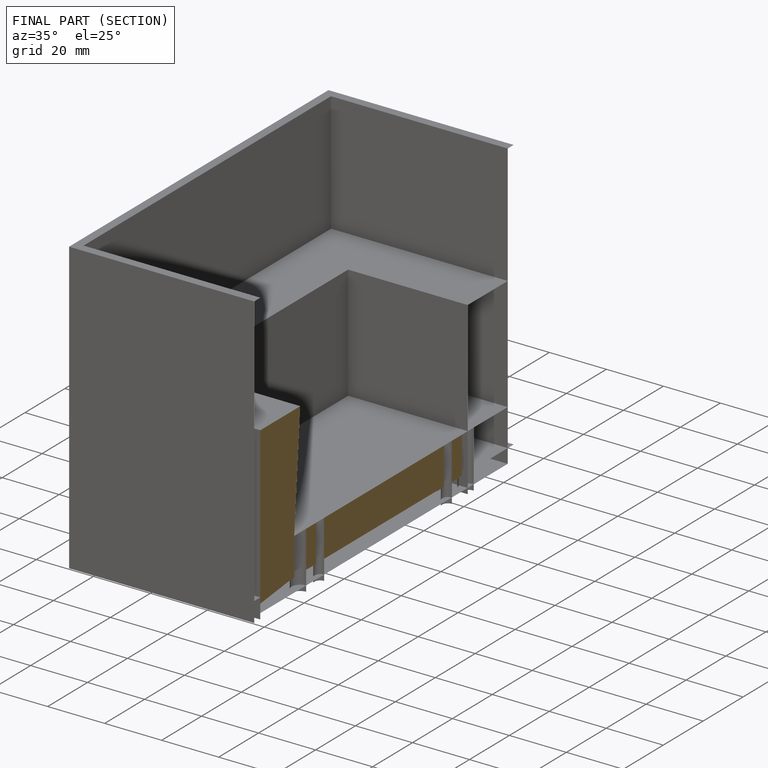
[diagram: finished part — half-section view (interior)]
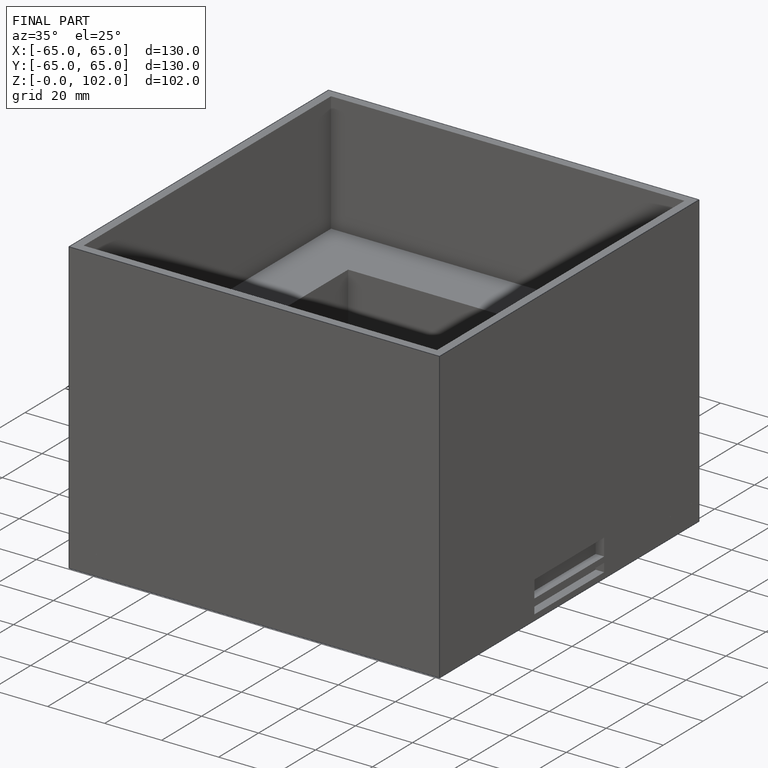
[diagram: finished part — iso view with bounding-box wireframe]
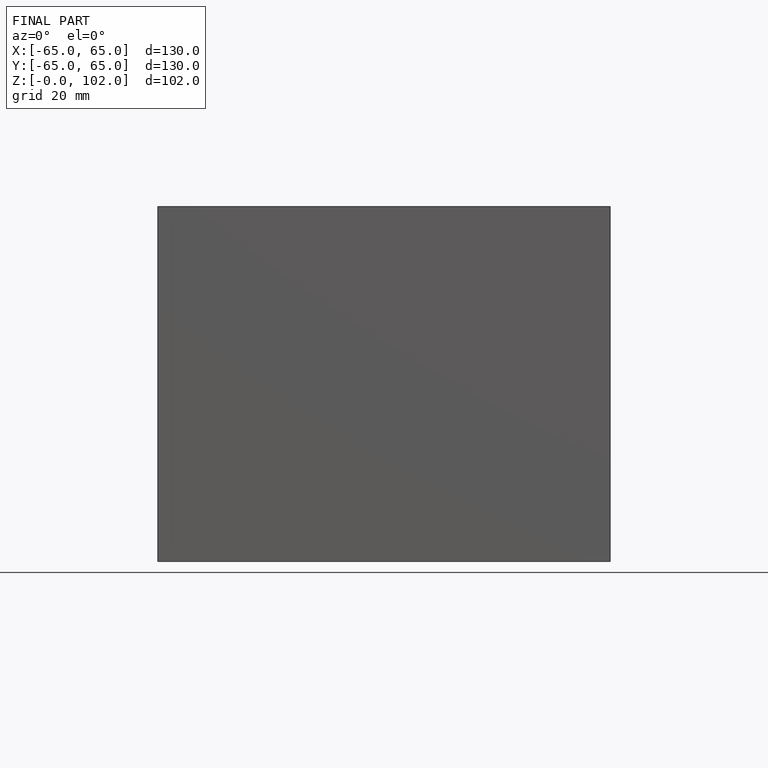
[diagram: finished part — front view with bounding-box wireframe]
